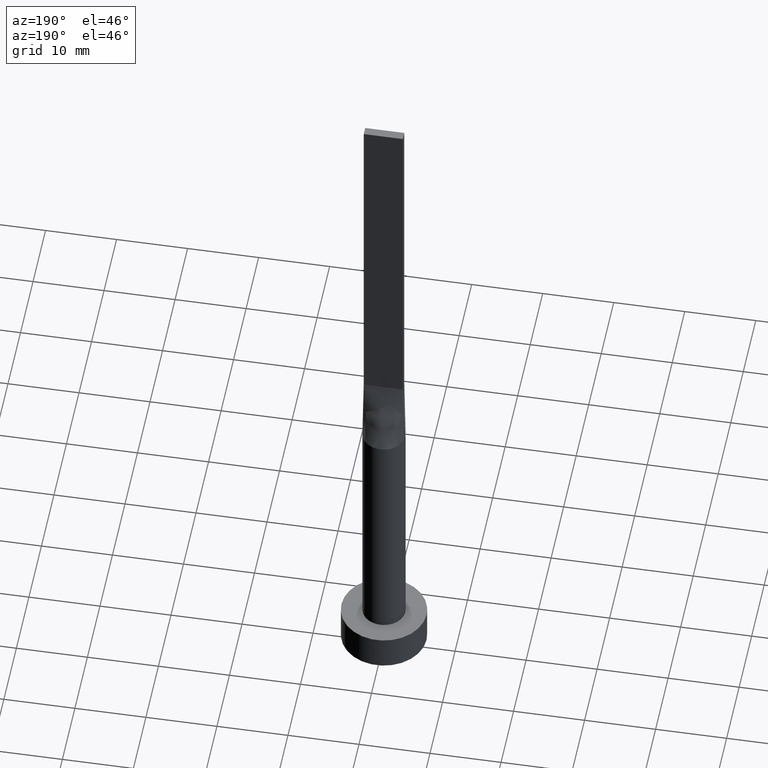
[diagram: clean part render]
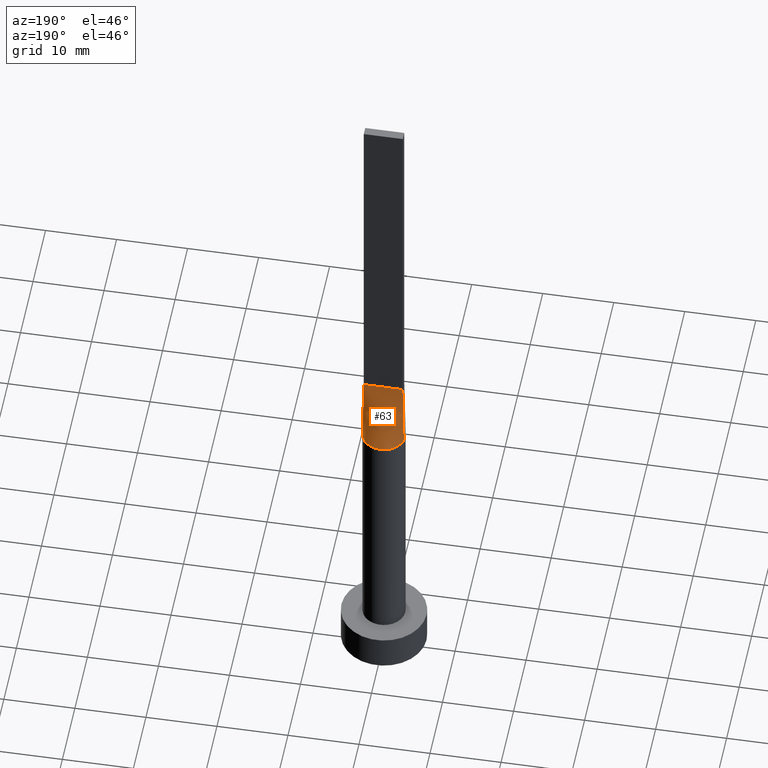
[diagram: same view with one face highlighted and labeled with its STEP entity id]
A machine part, auxiliary view. The second image highlights one B-rep face of the part: STEP entity #63.
In plain terms, the highlighted face is a freeform B-spline surface patch.
Its self-contained STEP definition (entity closure, byte-faithful):
#8 = CARTESIAN_POINT ( 'NONE',  ( 2.750000000000000000, 0.6000000000000001998, 50.00000000000000000 ) ) ;
#22 = CARTESIAN_POINT ( 'NONE',  ( 0.4026715616377294915, 2.999999999999999556, 40.00000000000000000 ) ) ;
#25 = CARTESIAN_POINT ( 'NONE',  ( 2.792624347712116872, 1.135030881087315979, 40.00000000000002132 ) ) ;
#28 = ORIENTED_EDGE ( 'NONE', *, *, #102, .T. ) ;
#32 = DIRECTION ( 'NONE',  ( -0.01810162078030962129, -0.003949444533885605735, 0.9998283518749604415 ) ) ;
#55 = VERTEX_POINT ( 'NONE', #247 ) ;
#61 = CARTESIAN_POINT ( 'NONE',  ( -2.878980386154874616, 0.8781411751610629368, 39.99999999999999289 ) ) ;
#62 = DIRECTION ( 'NONE',  ( -1.000000000000000000, -0.000000000000000000, -0.000000000000000000 ) ) ;
#63 = ADVANCED_FACE ( 'NONE', ( #239 ), #174, .T. ) ;
#64 = CARTESIAN_POINT ( 'NONE',  ( 2.878980386154874616, 0.8781411751610636029, 39.99999999999999289 ) ) ;
#66 = CARTESIAN_POINT ( 'NONE',  ( -0.4026715616377299356, 2.999999999999999556, 40.00000000000000000 ) ) ;
#70 = CARTESIAN_POINT ( 'NONE',  ( -0.8041209001220690489, 2.916015559847871419, 40.00000000000000000 ) ) ;
#73 = CARTESIAN_POINT ( 'NONE',  ( -2.750000000000000000, 0.6000000000000001998, 50.00000000000000000 ) ) ;
#76 = VECTOR ( 'NONE', #32, 1000.000000000000000 ) ;
#79 = CARTESIAN_POINT ( 'NONE',  ( -1.517787371616671654, 2.616501225271827380, 40.00000000000000000 ) ) ;
#93 = B_SPLINE_CURVE_WITH_KNOTS ( 'NONE', 3,
 ( #163, #260, #25, #205, #387, #115, #423, #157, #22, #306, #70, #79, #384, #202, #380, #350, #430, #433 ),
 .UNSPECIFIED., .F., .F.,
 ( 4, 2, 2, 2, 2, 2, 2, 2, 4 ),
 ( 0.000000000000000000, 0.1250000000000000000, 0.2500000000000000000, 0.3750000000000000000, 0.5000000000000000000, 0.6250000000000000000, 0.7500000000000000000, 0.8750000000000000000, 1.000000000000000000 ),
 .UNSPECIFIED. ) ;
#102 = EDGE_CURVE ( 'NONE', #55, #116, #93, .T. ) ;
#105 = CARTESIAN_POINT ( 'NONE',  ( -1.833333333333333037, 0.6000000000000000888, 50.00000000000000000 ) ) ;
#110 = CARTESIAN_POINT ( 'NONE',  ( -1.145833333333332815, 0.6000000000000000888, 50.00000000000000000 ) ) ;
#115 = CARTESIAN_POINT ( 'NONE',  ( 1.829136458871247761, 2.402980488111650992, 39.99999999999997868 ) ) ;
#116 = VERTEX_POINT ( 'NONE', #551 ) ;
#135 = EDGE_CURVE ( 'NONE', #55, #409, #301, .T. ) ;
#140 = LINE ( 'NONE', #544, #385 ) ;
#142 = CARTESIAN_POINT ( 'NONE',  ( 1.145833333333333703, 0.6000000000000000888, 50.00000000000000711 ) ) ;
#145 = CARTESIAN_POINT ( 'NONE',  ( -0.8041209001220690489, 2.916015559847871419, 40.00000000000000000 ) ) ;
#148 = CARTESIAN_POINT ( 'NONE',  ( 2.750000000000000000, 0.6000000000000001998, 50.00000000000000000 ) ) ;
#153 = CARTESIAN_POINT ( 'NONE',  ( 0.4583333333333337589, 0.6000000000000000888, 50.00000000000000711 ) ) ;
#157 = CARTESIAN_POINT ( 'NONE',  ( 0.8041209001220689379, 2.916015559847871863, 40.00000000000000000 ) ) ;
#163 = CARTESIAN_POINT ( 'NONE',  ( 2.931303352270923757, 0.6395574164693091923, 40.00000000000000000 ) ) ;
#174 = B_SPLINE_SURFACE_WITH_KNOTS ( 'NONE', 3, 1, ( 
 ( #243, #148 ),
 ( #64, #245 ),
 ( #193, #200 ),
 ( #327, #378 ),
 ( #465, #549 ),
 ( #415, #142 ),
 ( #196, #501 ),
 ( #496, #153 ),
 ( #336, #371 ),
 ( #66, #507 ),
 ( #145, #329 ),
 ( #499, #419 ),
 ( #458, #110 ),
 ( #373, #331 ),
 ( #198, #105 ),
 ( #286, #461 ),
 ( #61, #475 ),
 ( #339, #73 ) ),
 .UNSPECIFIED., .F., .F., .F.,
 ( 4, 2, 2, 2, 2, 2, 2, 2, 4 ),
 ( 2, 2 ),
 ( 0.000000000000000000, 0.1250000000000000000, 0.2500000000000000000, 0.3750000000000000000, 0.5000000000000000000, 0.6250000000000000000, 0.7500000000000000000, 0.8750000000000000000, 1.000000000000000000 ),
 ( 0.000000000000000000, 1.000000000000000000 ),
 .UNSPECIFIED. ) ;
#193 = CARTESIAN_POINT ( 'NONE',  ( 2.792624347712116872, 1.135030881087315979, 40.00000000000002132 ) ) ;
#196 = CARTESIAN_POINT ( 'NONE',  ( 1.517787371616672099, 2.616501225271827824, 39.99999999999999289 ) ) ;
#198 = CARTESIAN_POINT ( 'NONE',  ( -2.518011668798964653, 1.657305971825549840, 40.00000000000001421 ) ) ;
#200 = CARTESIAN_POINT ( 'NONE',  ( 2.291666666666666519, 0.6000000000000000888, 50.00000000000000000 ) ) ;
#202 = CARTESIAN_POINT ( 'NONE',  ( -2.328745122427008152, 1.922758842442225280, 39.99999999999998579 ) ) ;
#205 = CARTESIAN_POINT ( 'NONE',  ( 2.518011668798964209, 1.657305971825549840, 40.00000000000001421 ) ) ;
#239 = FACE_OUTER_BOUND ( 'NONE', #342, .T. ) ;
#243 = CARTESIAN_POINT ( 'NONE',  ( 2.931047284229977290, 0.6395012256501767522, 40.00000000000000000 ) ) ;
#245 = CARTESIAN_POINT ( 'NONE',  ( 2.520833333333333037, 0.6000000000000000888, 50.00000000000000000 ) ) ;
#247 = CARTESIAN_POINT ( 'NONE',  ( 2.931303352270923757, 0.6395574164693091923, 40.00000000000000000 ) ) ;
#260 = CARTESIAN_POINT ( 'NONE',  ( 2.878980386154874616, 0.8781411751610636029, 39.99999999999999289 ) ) ;
#274 = EDGE_CURVE ( 'NONE', #116, #354, #325, .T. ) ;
#280 = CARTESIAN_POINT ( 'NONE',  ( -2.750000000000000000, 0.6000000000000001998, 50.00000000000000000 ) ) ;
#286 = CARTESIAN_POINT ( 'NONE',  ( -2.792624347712117761, 1.135030881087315313, 40.00000000000001421 ) ) ;
#292 = ORIENTED_EDGE ( 'NONE', *, *, #321, .F. ) ;
#301 = LINE ( 'NONE', #517, #76 ) ;
#306 = CARTESIAN_POINT ( 'NONE',  ( -0.4026715616377299356, 2.999999999999999556, 40.00000000000000000 ) ) ;
#312 = VECTOR ( 'NONE', #538, 1000.000000000000000 ) ;
#321 = EDGE_CURVE ( 'NONE', #409, #354, #140, .T. ) ;
#325 = LINE ( 'NONE', #500, #312 ) ;
#327 = CARTESIAN_POINT ( 'NONE',  ( 2.518011668798964209, 1.657305971825549840, 40.00000000000001421 ) ) ;
#329 = CARTESIAN_POINT ( 'NONE',  ( -0.4583333333333329263, 0.6000000000000000888, 50.00000000000000000 ) ) ;
#331 = CARTESIAN_POINT ( 'NONE',  ( -1.604166666666666297, 0.6000000000000000888, 50.00000000000000000 ) ) ;
#336 = CARTESIAN_POINT ( 'NONE',  ( 0.4026715616377294915, 2.999999999999999556, 40.00000000000000000 ) ) ;
#339 = CARTESIAN_POINT ( 'NONE',  ( -2.931047284229977290, 0.6395012256501755310, 40.00000000000000000 ) ) ;
#342 = EDGE_LOOP ( 'NONE', ( #28, #453, #292, #450 ) ) ;
#350 = CARTESIAN_POINT ( 'NONE',  ( -2.792624347712117761, 1.135030881087315313, 40.00000000000001421 ) ) ;
#354 = VERTEX_POINT ( 'NONE', #280 ) ;
#371 = CARTESIAN_POINT ( 'NONE',  ( 0.2291666666666671015, 0.6000000000000001998, 50.00000000000000711 ) ) ;
#373 = CARTESIAN_POINT ( 'NONE',  ( -2.328745122427008152, 1.922758842442225280, 39.99999999999998579 ) ) ;
#378 = CARTESIAN_POINT ( 'NONE',  ( 1.833333333333333481, 0.6000000000000000888, 50.00000000000000000 ) ) ;
#380 = CARTESIAN_POINT ( 'NONE',  ( -2.518011668798964653, 1.657305971825549840, 40.00000000000001421 ) ) ;
#384 = CARTESIAN_POINT ( 'NONE',  ( -1.829136458871247761, 2.402980488111649660, 39.99999999999999289 ) ) ;
#385 = VECTOR ( 'NONE', #62, 1000.000000000000000 ) ;
#387 = CARTESIAN_POINT ( 'NONE',  ( 2.328745122427009040, 1.922758842442225946, 39.99999999999999289 ) ) ;
#409 = VERTEX_POINT ( 'NONE', #8 ) ;
#415 = CARTESIAN_POINT ( 'NONE',  ( 1.829136458871247761, 2.402980488111650992, 39.99999999999997868 ) ) ;
#419 = CARTESIAN_POINT ( 'NONE',  ( -0.9166666666666661856, 0.6000000000000000888, 50.00000000000000000 ) ) ;
#423 = CARTESIAN_POINT ( 'NONE',  ( 1.517787371616672099, 2.616501225271827824, 39.99999999999999289 ) ) ;
#430 = CARTESIAN_POINT ( 'NONE',  ( -2.878980386154874616, 0.8781411751610629368, 39.99999999999999289 ) ) ;
#433 = CARTESIAN_POINT ( 'NONE',  ( -2.931320679040856803, 0.6395611071856786012, 40.00000000000000000 ) ) ;
#450 = ORIENTED_EDGE ( 'NONE', *, *, #135, .F. ) ;
#453 = ORIENTED_EDGE ( 'NONE', *, *, #274, .T. ) ;
#458 = CARTESIAN_POINT ( 'NONE',  ( -1.829136458871247761, 2.402980488111649660, 39.99999999999999289 ) ) ;
#461 = CARTESIAN_POINT ( 'NONE',  ( -2.291666666666666519, 0.6000000000000000888, 50.00000000000000000 ) ) ;
#465 = CARTESIAN_POINT ( 'NONE',  ( 2.328745122427009040, 1.922758842442225946, 39.99999999999999289 ) ) ;
#475 = CARTESIAN_POINT ( 'NONE',  ( -2.520833333333333037, 0.6000000000000000888, 50.00000000000000000 ) ) ;
#496 = CARTESIAN_POINT ( 'NONE',  ( 0.8041209001220689379, 2.916015559847871863, 40.00000000000000000 ) ) ;
#499 = CARTESIAN_POINT ( 'NONE',  ( -1.517787371616671654, 2.616501225271827380, 40.00000000000000000 ) ) ;
#500 = CARTESIAN_POINT ( 'NONE',  ( -2.840523642114988423, 0.6197506128250878099, 45.00000000000000000 ) ) ;
#501 = CARTESIAN_POINT ( 'NONE',  ( 0.9166666666666670737, 0.6000000000000000888, 50.00000000000000711 ) ) ;
#507 = CARTESIAN_POINT ( 'NONE',  ( -0.2291666666666662688, 0.6000000000000000888, 50.00000000000000711 ) ) ;
#517 = CARTESIAN_POINT ( 'NONE',  ( 2.840523642114988867, 0.6197506128250880320, 45.00000000000000000 ) ) ;
#538 = DIRECTION ( 'NONE',  ( 0.01810162078030957619, -0.003949444533885573642, 0.9998283518749604415 ) ) ;
#544 = CARTESIAN_POINT ( 'NONE',  ( -2.750000000000000000, 0.6000000000000001998, 50.00000000000000000 ) ) ;
#549 = CARTESIAN_POINT ( 'NONE',  ( 1.604166666666666963, 0.6000000000000000888, 50.00000000000000000 ) ) ;
#551 = CARTESIAN_POINT ( 'NONE',  ( -2.931320679040856803, 0.6395611071856786012, 40.00000000000000000 ) ) ;